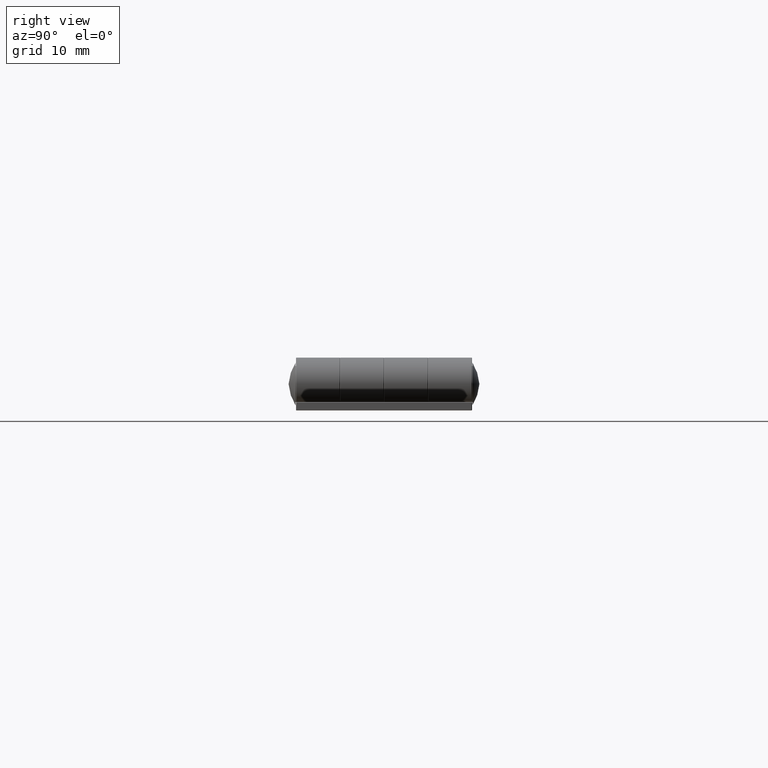
[diagram: clean part render]
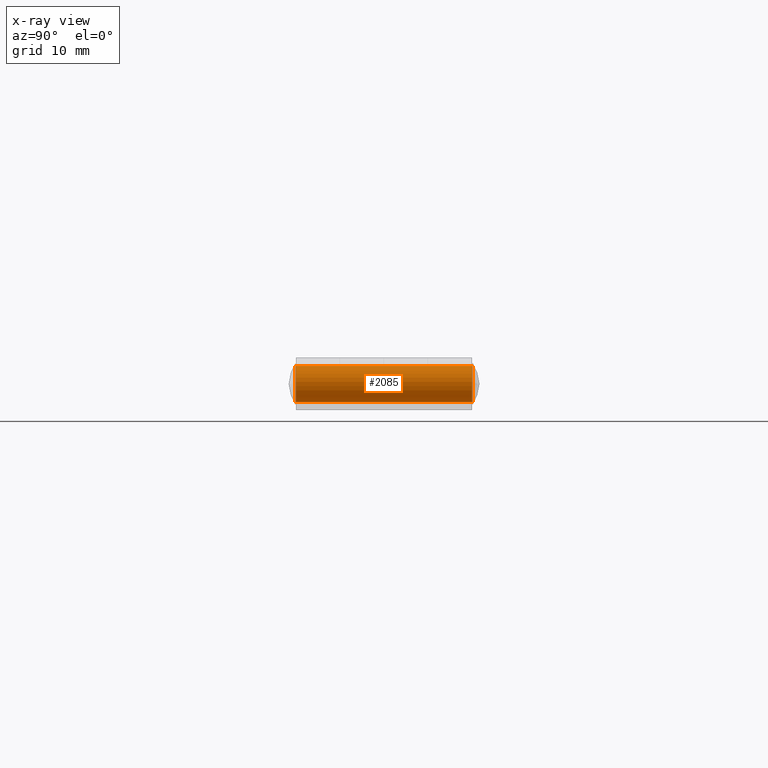
[diagram: x-ray — body ghosted, one internal face saturated and labeled with its STEP entity id]
A machine part, right view, then the same camera in x-ray: the body is ghosted and one INTERNAL B-rep face — a face not visible from any outside direction — is saturated and labeled: STEP entity #2085.
In plain terms, the highlighted cylindrical surface (bore or boss wall) has radius 2.55 mm, axis along (-0, -1, -0).
Its self-contained STEP definition (entity closure, byte-faithful):
#184 = CARTESIAN_POINT ( 'NONE',  ( 0.000000000000000000, -12.55000000000000071, 0.000000000000000000 ) ) ;
#629 = DIRECTION ( 'NONE',  ( 0.000000000000000000, 1.000000000000000000, 0.000000000000000000 ) ) ;
#842 = CARTESIAN_POINT ( 'NONE',  ( 0.000000000000000000, 12.55000000000000071, 2.549999999999999822 ) ) ;
#906 = DIRECTION ( 'NONE',  ( -0.000000000000000000, 1.000000000000000000, -0.000000000000000000 ) ) ;
#1020 = DIRECTION ( 'NONE',  ( 0.000000000000000000, 0.000000000000000000, 1.000000000000000000 ) ) ;
#1318 = VERTEX_POINT ( 'NONE', #842 ) ;
#1324 = DIRECTION ( 'NONE',  ( -0.000000000000000000, -1.000000000000000000, -0.000000000000000000 ) ) ;
#1549 = EDGE_LOOP ( 'NONE', ( #3890 ) ) ;
#1705 = CARTESIAN_POINT ( 'NONE',  ( 0.000000000000000000, 12.55000000000000071, 0.000000000000000000 ) ) ;
#1831 = CIRCLE ( 'NONE', #4863, 2.549999999999999822 ) ;
#1997 = CIRCLE ( 'NONE', #4905, 2.549999999999999822 ) ;
#2009 = CARTESIAN_POINT ( 'NONE',  ( 0.000000000000000000, 12.55000000000000071, 0.000000000000000000 ) ) ;
#2038 = EDGE_CURVE ( 'NONE', #4562, #4562, #1831, .T. ) ;
#2085 = ADVANCED_FACE ( 'NONE', ( #3580, #2173 ), #2933, .T. ) ;
#2173 = FACE_OUTER_BOUND ( 'NONE', #1549, .T. ) ;
#2249 = EDGE_CURVE ( 'NONE', #1318, #1318, #1997, .T. ) ;
#2933 = CYLINDRICAL_SURFACE ( 'NONE', #3884, 2.549999999999999822 ) ;
#3497 = DIRECTION ( 'NONE',  ( 0.000000000000000000, 0.000000000000000000, -1.000000000000000000 ) ) ;
#3580 = FACE_OUTER_BOUND ( 'NONE', #4579, .T. ) ;
#3884 = AXIS2_PLACEMENT_3D ( 'NONE', #1705, #1324, #3497 ) ;
#3888 = DIRECTION ( 'NONE',  ( 0.000000000000000000, 0.000000000000000000, 1.000000000000000000 ) ) ;
#3890 = ORIENTED_EDGE ( 'NONE', *, *, #2038, .T. ) ;
#4216 = CARTESIAN_POINT ( 'NONE',  ( 0.000000000000000000, -12.55000000000000071, 2.549999999999999822 ) ) ;
#4303 = ORIENTED_EDGE ( 'NONE', *, *, #2249, .F. ) ;
#4562 = VERTEX_POINT ( 'NONE', #4216 ) ;
#4579 = EDGE_LOOP ( 'NONE', ( #4303 ) ) ;
#4863 = AXIS2_PLACEMENT_3D ( 'NONE', #184, #906, #3888 ) ;
#4905 = AXIS2_PLACEMENT_3D ( 'NONE', #2009, #629, #1020 ) ;